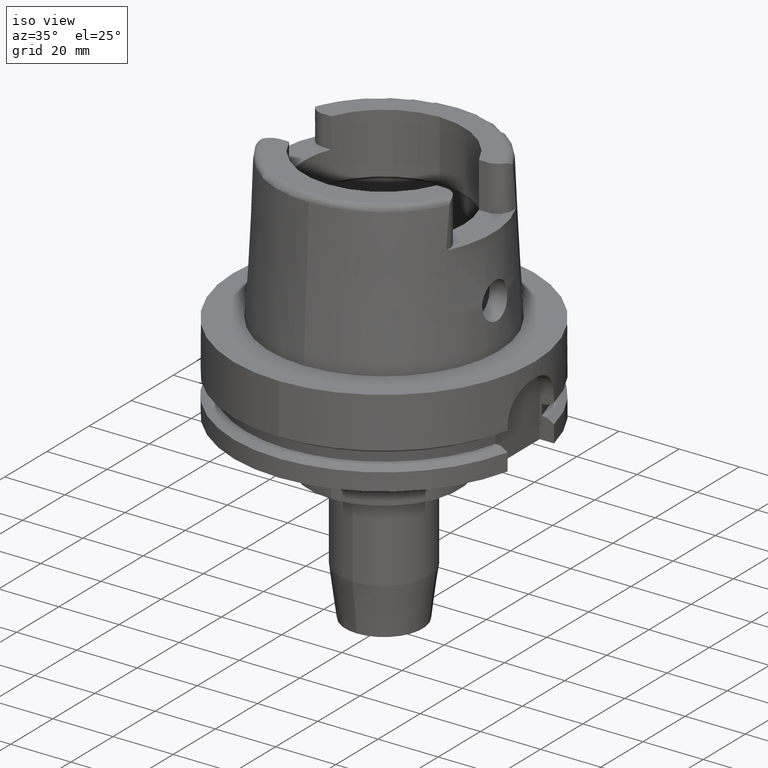
[diagram: clean part render]
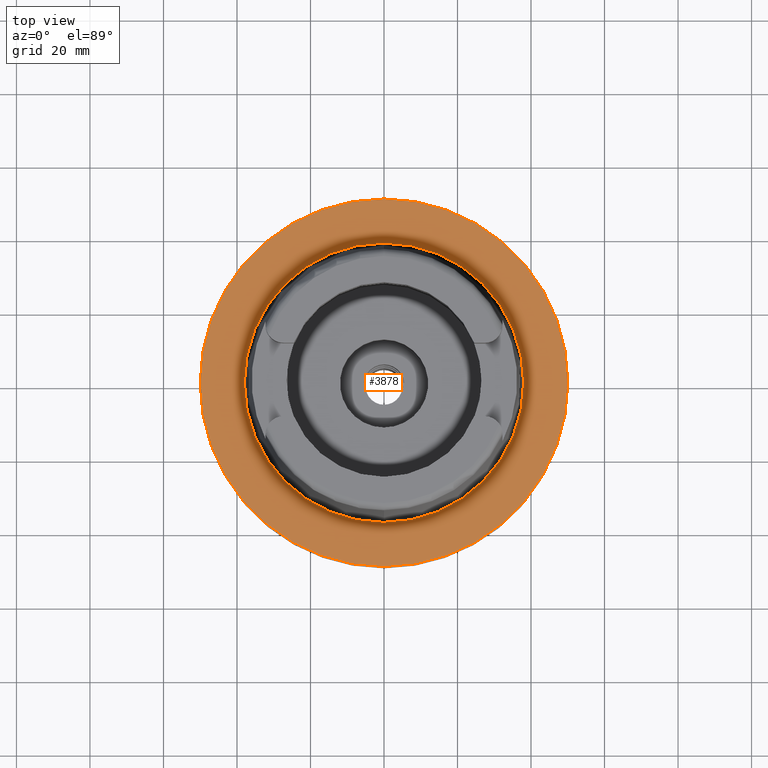
[diagram: tour spotlight — one face highlighted and labeled with its STEP entity id]
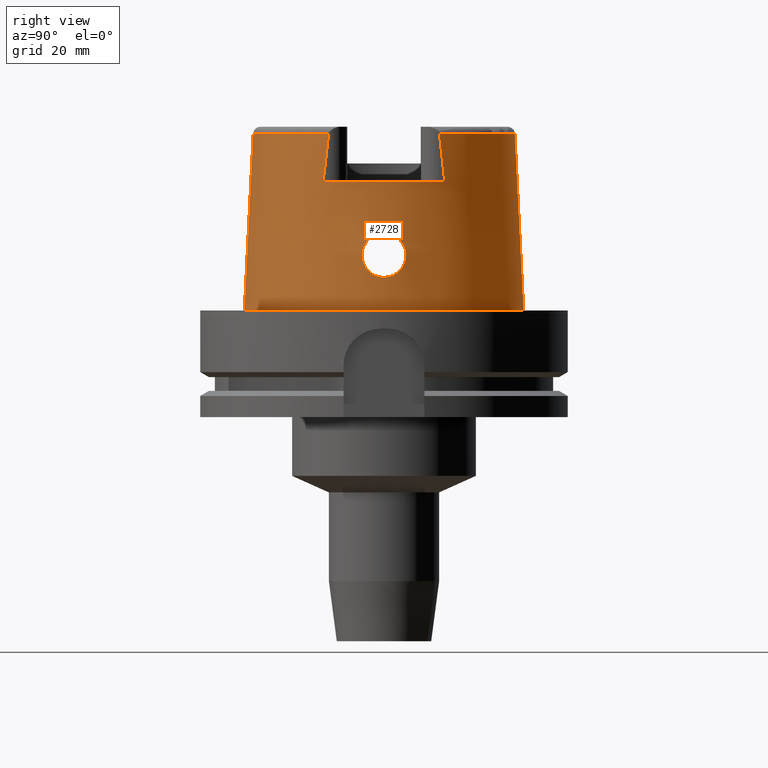
[diagram: tour spotlight — one face highlighted and labeled with its STEP entity id]
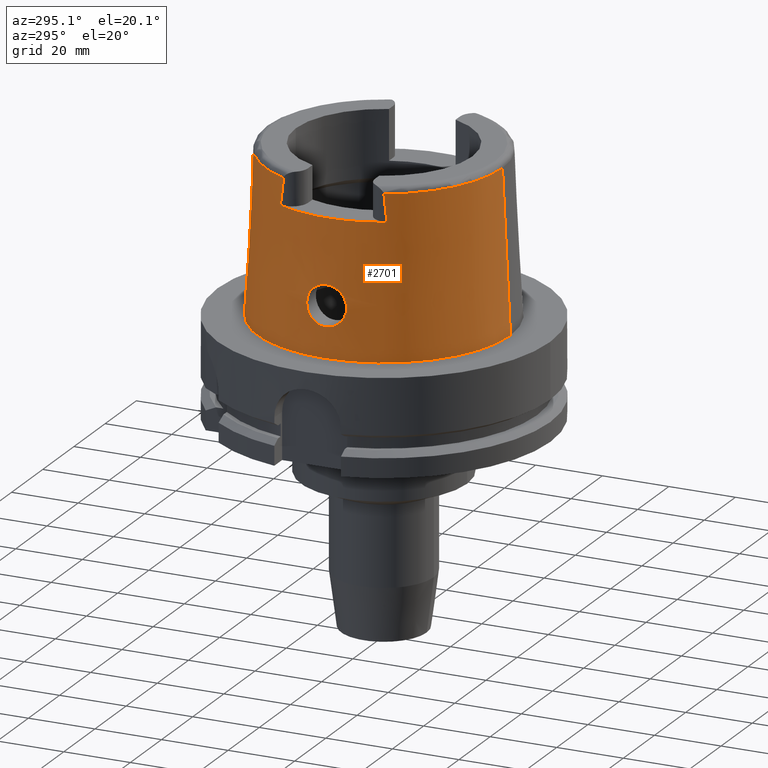
[diagram: tour spotlight — one face highlighted and labeled with its STEP entity id]
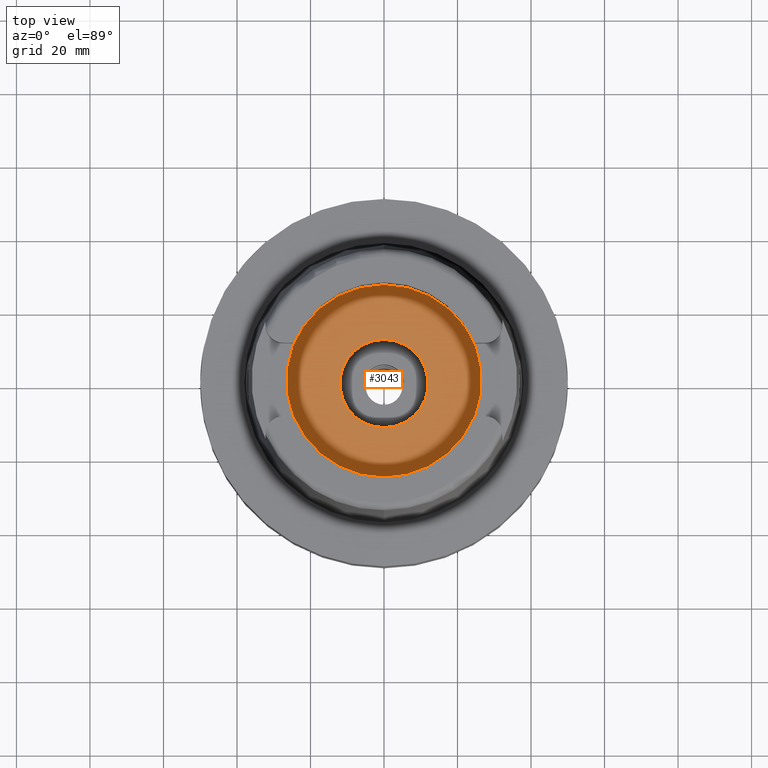
[diagram: tour spotlight — one face highlighted and labeled with its STEP entity id]
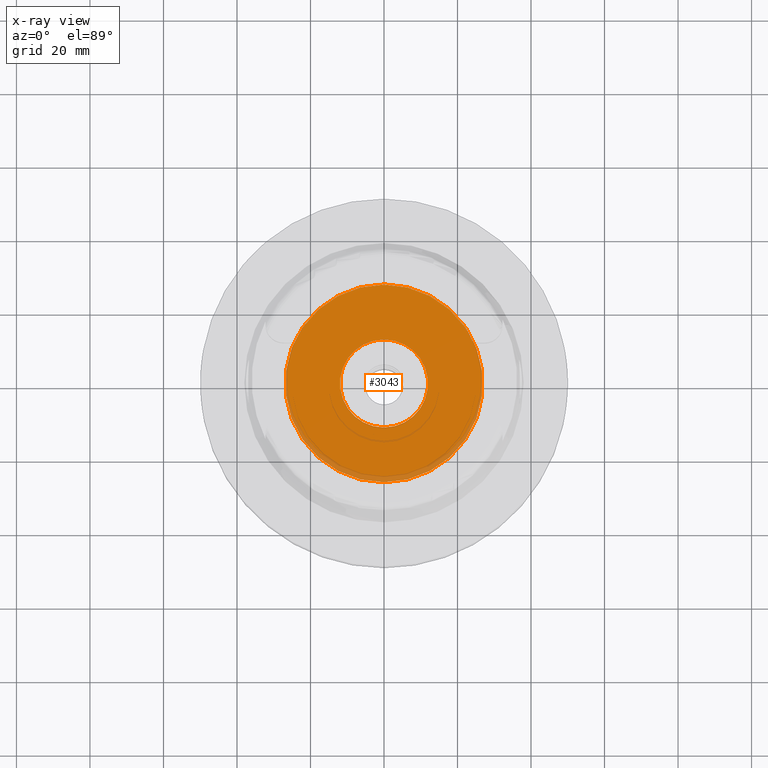
[diagram: x-ray of the same camera — body ghosted, this tour face saturated]
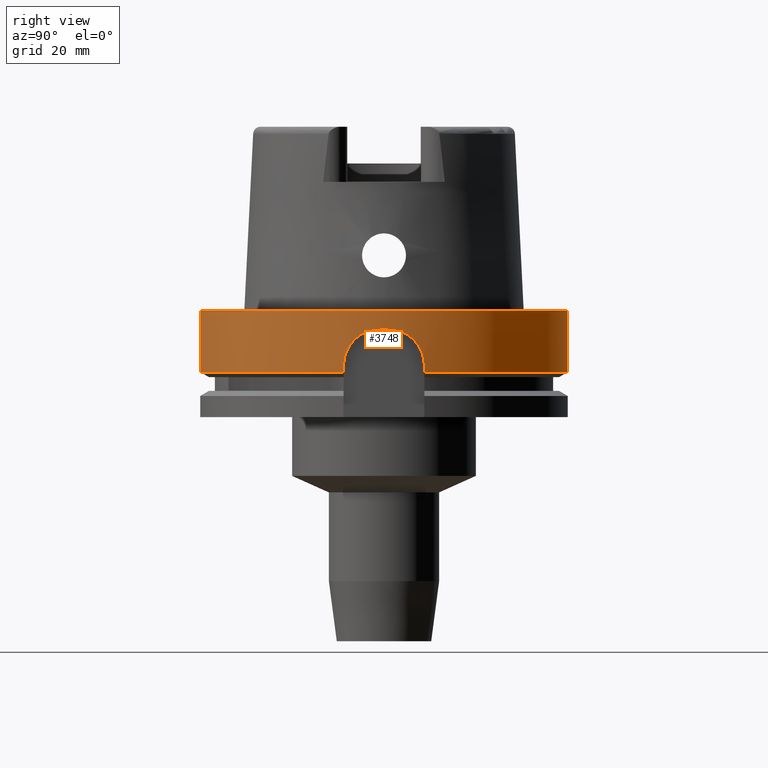
[diagram: tour spotlight — one face highlighted and labeled with its STEP entity id]
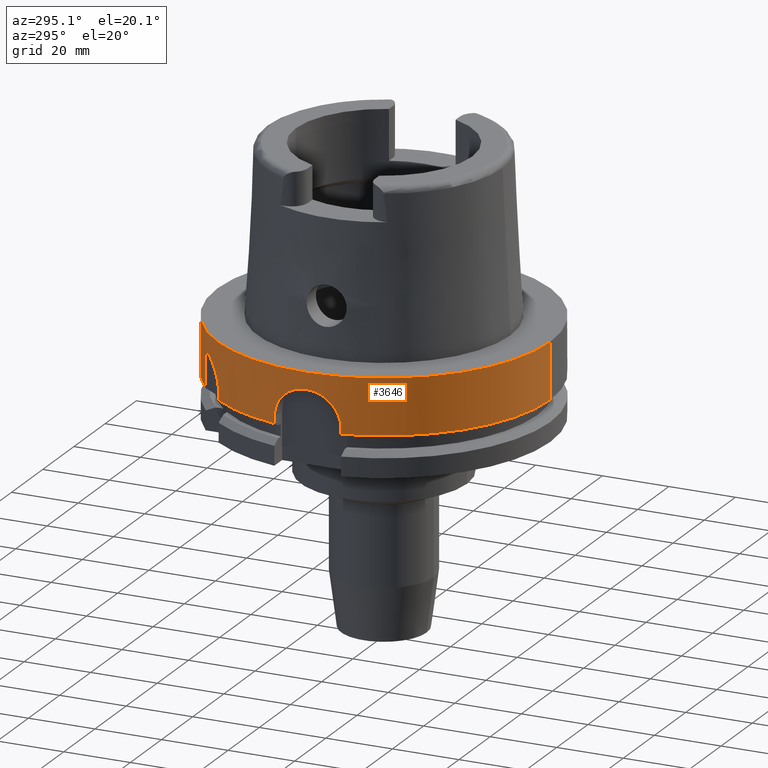
[diagram: tour spotlight — one face highlighted and labeled with its STEP entity id]
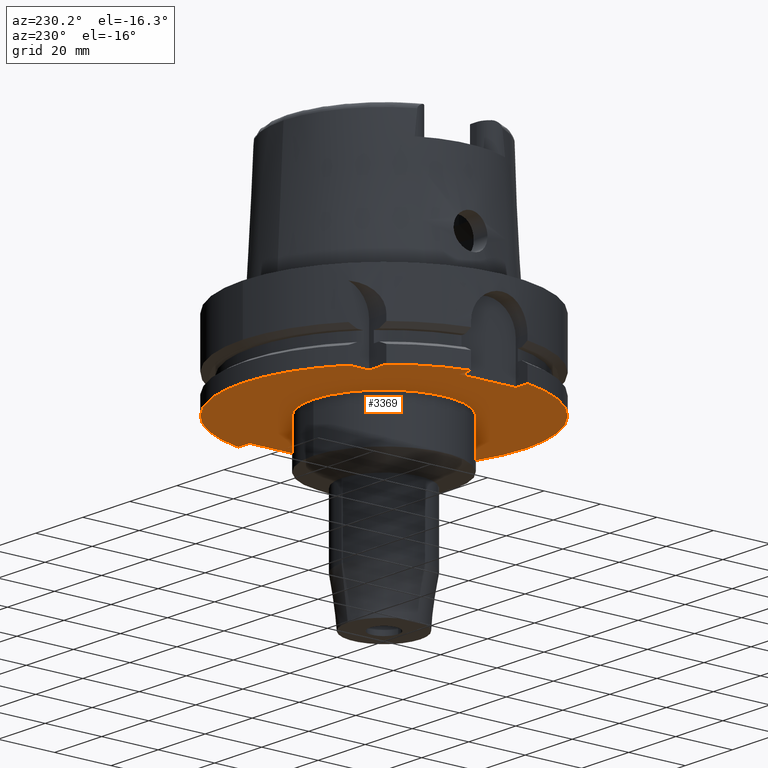
[diagram: tour spotlight — one face highlighted and labeled with its STEP entity id]
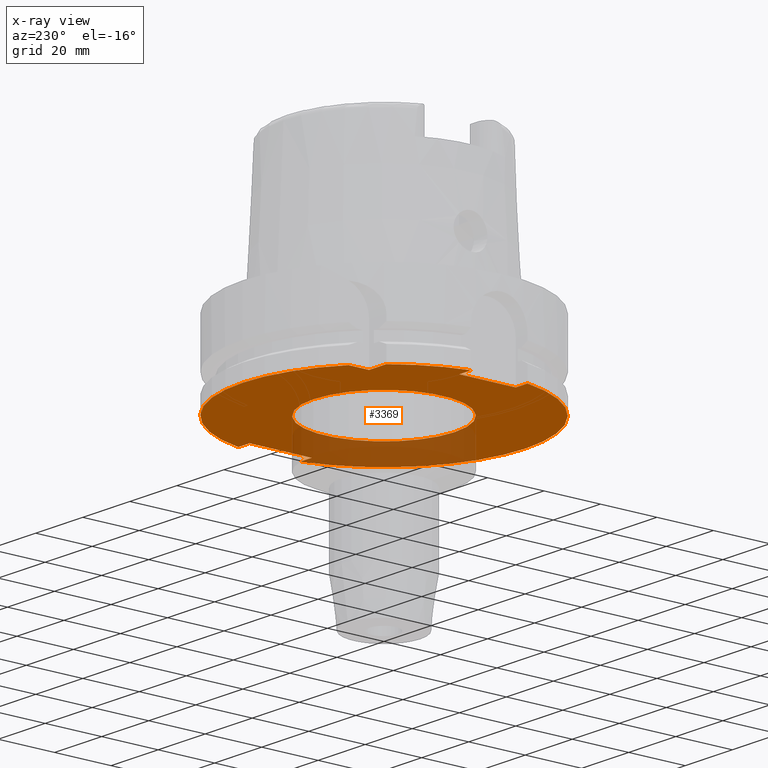
[diagram: x-ray of the same camera — body ghosted, this tour face saturated]
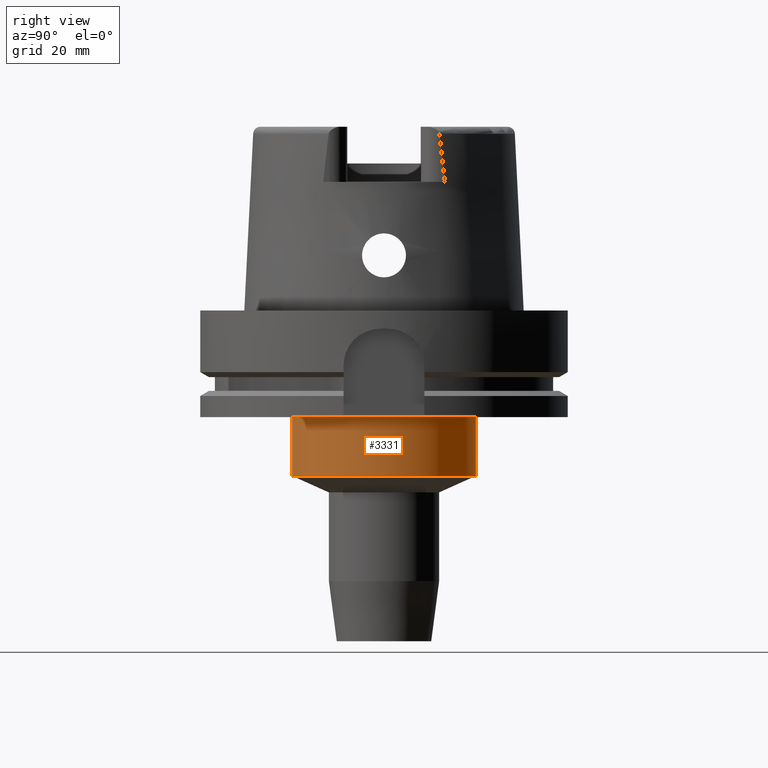
[diagram: tour spotlight — one face highlighted and labeled with its STEP entity id]
A machine part: a face-by-face anatomy tour. The part has 92 B-rep faces; the first image is the clean iso view, then the 8 largest visible faces are spotlighted one at a time (largest first), each with its STEP entity span.

Face 1 — top view, entity #3878. In plain terms, the highlighted planar face has unit normal (0, 0, 1).
Definition (entity closure, byte-faithful):
#1918=CARTESIAN_POINT('',(0.E0,0.E0,1.421085471520E-14));
#1919=DIRECTION('',(0.E0,0.E0,-1.E0));
#1920=DIRECTION('',(0.E0,-1.E0,0.E0));
#1921=AXIS2_PLACEMENT_3D('',#1918,#1919,#1920);
#1926=CARTESIAN_POINT('',(0.E0,0.E0,1.421085471520E-14));
#1927=DIRECTION('',(0.E0,0.E0,-1.E0));
#1928=DIRECTION('',(0.E0,1.E0,0.E0));
#1929=AXIS2_PLACEMENT_3D('',#1926,#1927,#1928);
#1934=CARTESIAN_POINT('',(0.E0,0.E0,1.023181539495E-12));
#1935=DIRECTION('',(0.E0,0.E0,1.E0));
#1936=DIRECTION('',(0.E0,-1.E0,0.E0));
#1937=AXIS2_PLACEMENT_3D('',#1934,#1935,#1936);
#1942=CARTESIAN_POINT('',(0.E0,0.E0,1.023181539495E-12));
#1943=DIRECTION('',(0.E0,0.E0,1.E0));
#1944=DIRECTION('',(0.E0,1.E0,0.E0));
#1945=AXIS2_PLACEMENT_3D('',#1942,#1943,#1944);
#2243=CARTESIAN_POINT('',(0.E0,-3.800001658252E1,6.892264536873E-13));
#2244=VERTEX_POINT('',#2243);
#2245=CARTESIAN_POINT('',(0.E0,3.800001658252E1,1.023181539495E-12));
#2246=VERTEX_POINT('',#2245);
#2476=CARTESIAN_POINT('',(0.E0,5.E1,1.421085471520E-14));
#2477=VERTEX_POINT('',#2476);
#2478=CARTESIAN_POINT('',(0.E0,-5.E1,1.421085471520E-14));
#2479=VERTEX_POINT('',#2478);
#3865=CARTESIAN_POINT('',(0.E0,0.E0,1.421085471520E-14));
#3866=DIRECTION('',(0.E0,0.E0,1.E0));
#3867=DIRECTION('',(0.E0,1.E0,0.E0));
#3868=AXIS2_PLACEMENT_3D('',#3865,#3866,#3867);
#3869=PLANE('',#3868);
#3870=ORIENTED_EDGE('',*,*,#3630,.T.);
#3871=ORIENTED_EDGE('',*,*,#3739,.T.);
#3872=EDGE_LOOP('',(#3870,#3871));
#3873=FACE_OUTER_BOUND('',#3872,.F.);
#3874=ORIENTED_EDGE('',*,*,#2714,.T.);
#3875=ORIENTED_EDGE('',*,*,#2685,.T.);
#3876=EDGE_LOOP('',(#3874,#3875));
#3877=FACE_BOUND('',#3876,.F.);
#1922=CIRCLE('',#1921,5.E1);
#1930=CIRCLE('',#1929,5.E1);
#1938=CIRCLE('',#1937,3.800001658252E1);
#1946=CIRCLE('',#1945,3.800001658252E1);
#2685=EDGE_CURVE('',#2246,#2244,#1946,.T.);
#2714=EDGE_CURVE('',#2244,#2246,#1938,.T.);
#3630=EDGE_CURVE('',#2479,#2477,#1922,.T.);
#3739=EDGE_CURVE('',#2477,#2479,#1930,.T.);
#3878=ADVANCED_FACE('',(#3873,#3877),#3869,.T.);

Face 2 — right view, entity #2728. In plain terms, the highlighted conical surface has half-angle 2.862 deg.
Definition (entity closure, byte-faithful):
#252=CARTESIAN_POINT('',(3.225000552017E1,-1.506439824101E1,4.810004211016E1));
#257=CARTESIAN_POINT('',(0.E0,0.E0,4.809987853799E1));
#258=DIRECTION('',(0.E0,0.E0,-1.E0));
#259=DIRECTION('',(9.060280460805E-1,-4.232176505246E-1,0.E0));
#260=AXIS2_PLACEMENT_3D('',#257,#258,#259);
#283=DIRECTION('',(5.154182075151E-5,-4.993927430816E-2,-9.987522546783E-1));
#284=VECTOR('',#283,4.815996991514E1);
#285=CARTESIAN_POINT('',(-2.482252536761E-3,-3.559494263425E1,
4.809987853799E1));
#286=LINE('',#285,#284);
#340=CARTESIAN_POINT('',(3.224999527489E1,1.655287543599E1,3.5E1));
#341=CARTESIAN_POINT('',(3.224999527489E1,1.639226210430E1,3.646677430492E1));
#342=CARTESIAN_POINT('',(3.224999958003E1,1.606837253952E1,3.939292749152E1));
#343=CARTESIAN_POINT('',(3.225000855756E1,1.557203234813E1,4.375938225518E1));
#344=CARTESIAN_POINT('',(3.224998031234E1,1.523513260123E1,4.665592298773E1));
#345=CARTESIAN_POINT('',(3.224998031234E1,1.506460281155E1,4.809931496843E1));
#350=DIRECTION('',(-5.154182075159E-5,4.993927430816E-2,-9.987522546783E-1));
#351=VECTOR('',#350,4.815996991514E1);
#352=CARTESIAN_POINT('',(2.482252536765E-3,3.559494263425E1,4.809987853799E1));
#353=LINE('',#352,#351);
#357=CARTESIAN_POINT('',(3.225000552017E1,-1.506439824101E1,4.810004211016E1));
#358=CARTESIAN_POINT('',(3.225000552017E1,-1.523503291308E1,4.665577790905E1));
#359=CARTESIAN_POINT('',(3.225000026293E1,-1.557219471894E1,4.376011586800E1));
#360=CARTESIAN_POINT('',(3.224999079948E1,-1.606856473816E1,3.939344258231E1));
#361=CARTESIAN_POINT('',(3.225002129259E1,-1.639212166417E1,3.646699412941E1));
#362=CARTESIAN_POINT('',(3.225002129259E1,-1.655276054267E1,3.5E1));
#367=CARTESIAN_POINT('',(3.694998175923E1,-1.503990973345E-13,2.1E1));
#368=CARTESIAN_POINT('',(3.694998175923E1,-4.801191505250E-1,2.1E1));
#369=CARTESIAN_POINT('',(3.693669518448E1,-1.443037160226E0,2.088407539947E1));
#370=CARTESIAN_POINT('',(3.688222525597E1,-2.812213765927E0,2.036759709156E1));
#371=CARTESIAN_POINT('',(3.680970426127E1,-4.022298401525E0,1.953026348318E1));
#372=CARTESIAN_POINT('',(3.674469850368E1,-4.978277620714E0,1.845129412502E1));
#373=CARTESIAN_POINT('',(3.670931274055E1,-5.659670919160E0,1.716166350534E1));
#374=CARTESIAN_POINT('',(3.672366607191E1,-6.010638566465E0,1.575446514446E1));
#375=CARTESIAN_POINT('',(3.679601650851E1,-6.017375129422E0,1.430491048279E1));
#376=CARTESIAN_POINT('',(3.692150360591E1,-5.682492346161E0,1.289864284966E1));
#377=CARTESIAN_POINT('',(3.708636419479E1,-5.010486523940E0,1.159416598817E1));
#378=CARTESIAN_POINT('',(3.726074696155E1,-4.054717448159E0,1.049595437204E1));
#379=CARTESIAN_POINT('',(3.742014200635E1,-2.820275689723E0,9.633675769486E0));
#380=CARTESIAN_POINT('',(3.752611369446E1,-1.431915040470E0,9.112741120027E0));
#381=CARTESIAN_POINT('',(3.755000165825E1,-4.738283291400E-1,9.E0));
#382=CARTESIAN_POINT('',(3.755000165825E1,0.E0,9.E0));
#387=CARTESIAN_POINT('',(3.755000165825E1,0.E0,9.E0));
#388=CARTESIAN_POINT('',(3.755000165825E1,4.746659365303E-1,9.E0));
#389=CARTESIAN_POINT('',(3.752593524301E1,1.428740779503E0,9.113659002864E0));
#390=CARTESIAN_POINT('',(3.742281735866E1,2.789157292599E0,9.620480192810E0));
#391=CARTESIAN_POINT('',(3.726793474523E1,4.006172063328E0,1.045569985053E1));
#392=CARTESIAN_POINT('',(3.709631867225E1,4.962911196506E0,1.152588914126E1));
#393=CARTESIAN_POINT('',(3.692867801413E1,5.658909158908E0,1.283096712388E1));
#394=CARTESIAN_POINT('',(3.679910806828E1,6.013409711768E0,1.425697628878E1));
#395=CARTESIAN_POINT('',(3.672455380602E1,6.015195535620E0,1.572203941849E1));
#396=CARTESIAN_POINT('',(3.670908571363E1,5.670955282614E0,1.713089879721E1));
#397=CARTESIAN_POINT('',(3.674336051068E1,4.998755423268E0,1.842165224560E1));
#398=CARTESIAN_POINT('',(3.680815078718E1,4.045667257102E0,1.951026133027E1));
#399=CARTESIAN_POINT('',(3.688128765514E1,2.831702102780E0,2.035837163422E1));
#400=CARTESIAN_POINT('',(3.693653264590E1,1.452394215414E0,2.088271523195E1));
#401=CARTESIAN_POINT('',(3.694998175923E1,4.831412896952E-1,2.1E1));
#402=CARTESIAN_POINT('',(3.694998175923E1,-1.503990973345E-13,2.1E1));
#437=CARTESIAN_POINT('',(0.E0,0.E0,3.5E1));
#438=DIRECTION('',(0.E0,0.E0,-1.E0));
#439=DIRECTION('',(8.896561898443E-1,4.566309931135E-1,0.E0));
#440=AXIS2_PLACEMENT_3D('',#437,#438,#439);
#1934=CARTESIAN_POINT('',(0.E0,0.E0,1.023181539495E-12));
#1935=DIRECTION('',(0.E0,0.E0,1.E0));
#1936=DIRECTION('',(0.E0,-1.E0,0.E0));
#1937=AXIS2_PLACEMENT_3D('',#1934,#1935,#1936);
#2147=CARTESIAN_POINT('',(0.E0,0.E0,4.809987853799E1));
#2148=DIRECTION('',(0.E0,0.E0,-1.E0));
#2149=DIRECTION('',(0.E0,1.E0,0.E0));
#2150=AXIS2_PLACEMENT_3D('',#2147,#2148,#2149);
#2233=CARTESIAN_POINT('',(0.E0,3.559494289391E1,4.809987853799E1));
#2234=VERTEX_POINT('',#2233);
#2235=CARTESIAN_POINT('',(3.224994093704E1,1.506456999646E1,4.809987853799E1));
#2236=VERTEX_POINT('',#2235);
#2240=VERTEX_POINT('',#252);
#2241=CARTESIAN_POINT('',(1.065814103640E-14,-3.559494289391E1,
4.809987853799E1));
#2242=VERTEX_POINT('',#2241);
#2243=CARTESIAN_POINT('',(0.E0,-3.800001658252E1,6.892264536873E-13));
#2244=VERTEX_POINT('',#2243);
#2245=CARTESIAN_POINT('',(0.E0,3.800001658252E1,1.023181539495E-12));
#2246=VERTEX_POINT('',#2245);
#2249=CARTESIAN_POINT('',(3.225E1,1.655285457013E1,3.5E1));
#2250=CARTESIAN_POINT('',(3.225E1,-1.655285457013E1,3.5E1));
#2251=VERTEX_POINT('',#2249);
#2252=VERTEX_POINT('',#2250);
#2253=VERTEX_POINT('',#367);
#2254=VERTEX_POINT('',#382);
#2702=CARTESIAN_POINT('',(0.E0,0.E0,2.404993926900E1));
#2703=DIRECTION('',(0.E0,0.E0,-1.E0));
#2704=DIRECTION('',(0.E0,-1.E0,0.E0));
#2705=AXIS2_PLACEMENT_3D('',#2702,#2703,#2704);
#2706=CONICAL_SURFACE('',#2705,3.679747973821E1,2.8625E0);
#2708=ORIENTED_EDGE('',*,*,#2707,.F.);
#2710=ORIENTED_EDGE('',*,*,#2709,.T.);
#2712=ORIENTED_EDGE('',*,*,#2711,.F.);
#2713=ORIENTED_EDGE('',*,*,#2687,.T.);
#2715=ORIENTED_EDGE('',*,*,#2714,.F.);
#2716=ORIENTED_EDGE('',*,*,#2683,.F.);
#2717=ORIENTED_EDGE('',*,*,#2655,.F.);
#2719=ORIENTED_EDGE('',*,*,#2718,.T.);
#2720=EDGE_LOOP('',(#2708,#2710,#2712,#2713,#2715,#2716,#2717,#2719));
#2721=FACE_OUTER_BOUND('',#2720,.F.);
#2723=ORIENTED_EDGE('',*,*,#2722,.T.);
#2725=ORIENTED_EDGE('',*,*,#2724,.T.);
#2726=EDGE_LOOP('',(#2723,#2725));
#2727=FACE_BOUND('',#2726,.F.);
#261=CIRCLE('',#260,3.559494289391E1);
#346=B_SPLINE_CURVE_WITH_KNOTS('',3,(#340,#341,#342,#343,#344,#345),
.UNSPECIFIED.,.F.,.F.,(4,1,1,4),(0.E0,3.333333333333E-1,6.666666666667E-1,1.E0),
.UNSPECIFIED.);
#363=B_SPLINE_CURVE_WITH_KNOTS('',3,(#357,#358,#359,#360,#361,#362),
.UNSPECIFIED.,.F.,.F.,(4,1,1,4),(0.E0,3.333333333333E-1,6.666666666667E-1,1.E0),
.UNSPECIFIED.);
#383=B_SPLINE_CURVE_WITH_KNOTS('',3,(#367,#368,#369,#370,#371,#372,#373,#374,
#375,#376,#377,#378,#379,#380,#381,#382),.UNSPECIFIED.,.F.,.F.,(4,1,1,1,1,1,1,1,
1,1,1,1,1,4),(0.E0,7.692307692308E-2,1.538461538462E-1,2.307692307692E-1,
3.076923076923E-1,3.846153846154E-1,4.615384615385E-1,5.384615384615E-1,
6.153846153846E-1,6.923076923077E-1,7.692307692308E-1,8.461538461538E-1,
9.230769230769E-1,1.E0),.UNSPECIFIED.);
#403=B_SPLINE_CURVE_WITH_KNOTS('',3,(#387,#388,#389,#390,#391,#392,#393,#394,
#395,#396,#397,#398,#399,#400,#401,#402),.UNSPECIFIED.,.F.,.F.,(4,1,1,1,1,1,1,1,
1,1,1,1,1,4),(0.E0,7.692307692308E-2,1.538461538462E-1,2.307692307692E-1,
3.076923076923E-1,3.846153846154E-1,4.615384615385E-1,5.384615384615E-1,
6.153846153846E-1,6.923076923077E-1,7.692307692308E-1,8.461538461538E-1,
9.230769230769E-1,1.E0),.UNSPECIFIED.);
#441=CIRCLE('',#440,3.624995854370E1);
#1938=CIRCLE('',#1937,3.800001658252E1);
#2151=CIRCLE('',#2150,3.559494289391E1);
#2655=EDGE_CURVE('',#2240,#2242,#261,.T.);
#2683=EDGE_CURVE('',#2242,#2244,#286,.T.);
#2687=EDGE_CURVE('',#2234,#2246,#353,.T.);
#2707=EDGE_CURVE('',#2251,#2252,#441,.T.);
#2709=EDGE_CURVE('',#2251,#2236,#346,.T.);
#2711=EDGE_CURVE('',#2234,#2236,#2151,.T.);
#2714=EDGE_CURVE('',#2244,#2246,#1938,.T.);
#2718=EDGE_CURVE('',#2240,#2252,#363,.T.);
#2722=EDGE_CURVE('',#2253,#2254,#383,.T.);
#2724=EDGE_CURVE('',#2254,#2253,#403,.T.);
#2728=ADVANCED_FACE('',(#2721,#2727),#2706,.T.);

Face 3 — auxiliary view, entity #2701. In plain terms, the highlighted conical surface has half-angle 2.862 deg.
Definition (entity closure, byte-faithful):
#130=CARTESIAN_POINT('',(0.E0,0.E0,4.E1));
#131=DIRECTION('',(0.E0,0.E0,-1.E0));
#132=DIRECTION('',(-8.958345712660E-1,-4.443876921391E-1,0.E0));
#133=AXIS2_PLACEMENT_3D('',#130,#131,#132);
#237=CARTESIAN_POINT('',(-3.224999491821E1,-1.506448487682E1,4.809973203731E1));
#265=CARTESIAN_POINT('',(0.E0,0.E0,4.809987853799E1));
#266=DIRECTION('',(0.E0,0.E0,-1.E0));
#267=DIRECTION('',(0.E0,-1.E0,0.E0));
#268=AXIS2_PLACEMENT_3D('',#265,#266,#267);
#273=CARTESIAN_POINT('',(-3.224999876012E1,-1.599794043148E1,4.E1));
#274=CARTESIAN_POINT('',(-3.224999876012E1,-1.589618560063E1,4.090434232027E1));
#275=CARTESIAN_POINT('',(-3.224999990104E1,-1.569149929001E1,4.271014761156E1));
#276=CARTESIAN_POINT('',(-3.225000220619E1,-1.538028256141E1,4.541006256223E1));
#277=CARTESIAN_POINT('',(-3.224999491821E1,-1.517027177916E1,4.720434000043E1));
#278=CARTESIAN_POINT('',(-3.224999491821E1,-1.506448487682E1,4.809973203731E1));
#283=DIRECTION('',(5.154182075151E-5,-4.993927430816E-2,-9.987522546783E-1));
#284=VECTOR('',#283,4.815996991514E1);
#285=CARTESIAN_POINT('',(-2.482252536761E-3,-3.559494263425E1,
4.809987853799E1));
#286=LINE('',#285,#284);
#290=CARTESIAN_POINT('',(-3.225000136841E1,1.506443226560E1,4.809991936163E1));
#291=CARTESIAN_POINT('',(-3.225000136841E1,1.517024629756E1,4.720430015956E1));
#292=CARTESIAN_POINT('',(-3.225000007421E1,1.538032523255E1,4.541024587332E1));
#293=CARTESIAN_POINT('',(-3.224999768767E1,1.569154927011E1,4.271027465936E1));
#294=CARTESIAN_POINT('',(-3.225000534596E1,1.589614940559E1,4.090439636549E1));
#295=CARTESIAN_POINT('',(-3.225000534596E1,1.599791057085E1,4.E1));
#300=CARTESIAN_POINT('',(-3.755000165825E1,1.571614468377E-13,9.E0));
#301=CARTESIAN_POINT('',(-3.755000165825E1,-4.746705843115E-1,9.E0));
#302=CARTESIAN_POINT('',(-3.752593484732E1,-1.428751077722E0,9.113660768391E0));
#303=CARTESIAN_POINT('',(-3.742281602409E1,-2.789168703710E0,9.620487241016E0));
#304=CARTESIAN_POINT('',(-3.726793544939E1,-4.006166469709E0,1.045569603939E1));
#305=CARTESIAN_POINT('',(-3.709631906876E1,-4.962909667856E0,1.152588634947E1));
#306=CARTESIAN_POINT('',(-3.692867825695E1,-5.658908489487E0,1.283096437532E1));
#307=CARTESIAN_POINT('',(-3.679910752654E1,-6.013411068954E0,1.425698264724E1));
#308=CARTESIAN_POINT('',(-3.672455367578E1,-6.015194364960E0,1.572204574714E1));
#309=CARTESIAN_POINT('',(-3.670908576067E1,-5.670954713466E0,1.713089968065E1));
#310=CARTESIAN_POINT('',(-3.674336048072E1,-4.998755925283E0,1.842165021819E1));
#311=CARTESIAN_POINT('',(-3.680815033466E1,-4.045674590613E0,1.951025573443E1));
#312=CARTESIAN_POINT('',(-3.688128818393E1,-2.831692909162E0,2.035837756362E1));
#313=CARTESIAN_POINT('',(-3.693653277226E1,-1.452387684598E0,2.088271612644E1));
#314=CARTESIAN_POINT('',(-3.694998175923E1,-4.831382252281E-1,2.1E1));
#315=CARTESIAN_POINT('',(-3.694998175923E1,0.E0,2.1E1));
#320=CARTESIAN_POINT('',(-3.694998175923E1,0.E0,2.1E1));
#321=CARTESIAN_POINT('',(-3.694998175923E1,4.801232090910E-1,2.1E1));
#322=CARTESIAN_POINT('',(-3.693669500324E1,1.443045878028E0,2.088407402034E1));
#323=CARTESIAN_POINT('',(-3.688222464620E1,2.812224362034E0,2.036759033196E1));
#324=CARTESIAN_POINT('',(-3.680970476685E1,4.022290066889E0,1.953026948162E1));
#325=CARTESIAN_POINT('',(-3.674469882622E1,4.978272949091E0,1.845130119078E1));
#326=CARTESIAN_POINT('',(-3.670931288366E1,5.659666255118E0,1.716167499293E1));
#327=CARTESIAN_POINT('',(-3.672366568587E1,6.010638144956E0,1.575447426686E1));
#328=CARTESIAN_POINT('',(-3.679601641605E1,6.017375320849E0,1.430491156046E1));
#329=CARTESIAN_POINT('',(-3.692150307020E1,5.682494152192E0,1.289864804832E1));
#330=CARTESIAN_POINT('',(-3.708636365891E1,5.010488641359E0,1.159416984780E1));
#331=CARTESIAN_POINT('',(-3.726074583466E1,4.054725496044E0,1.049596070945E1));
#332=CARTESIAN_POINT('',(-3.742014291371E1,2.820268462267E0,9.633670873075E0));
#333=CARTESIAN_POINT('',(-3.752611389780E1,1.431909116865E0,9.112740269695E0));
#334=CARTESIAN_POINT('',(-3.755000165825E1,4.738254836085E-1,9.E0));
#335=CARTESIAN_POINT('',(-3.755000165825E1,1.571614468377E-13,9.E0));
#350=DIRECTION('',(-5.154182075159E-5,4.993927430816E-2,-9.987522546783E-1));
#351=VECTOR('',#350,4.815996991514E1);
#352=CARTESIAN_POINT('',(2.482252536765E-3,3.559494263425E1,4.809987853799E1));
#353=LINE('',#352,#351);
#1942=CARTESIAN_POINT('',(0.E0,0.E0,1.023181539495E-12));
#1943=DIRECTION('',(0.E0,0.E0,1.E0));
#1944=DIRECTION('',(0.E0,1.E0,0.E0));
#1945=AXIS2_PLACEMENT_3D('',#1942,#1943,#1944);
#2134=CARTESIAN_POINT('',(-3.225000136841E1,1.506443226560E1,4.809991936163E1));
#2139=CARTESIAN_POINT('',(0.E0,0.E0,4.809987853799E1));
#2140=DIRECTION('',(0.E0,0.E0,-1.E0));
#2141=DIRECTION('',(-9.060276961631E-1,4.232183996300E-1,0.E0));
#2142=AXIS2_PLACEMENT_3D('',#2139,#2140,#2141);
#2227=CARTESIAN_POINT('',(-3.224999876012E1,-1.599794043148E1,4.E1));
#2228=VERTEX_POINT('',#2227);
#2229=CARTESIAN_POINT('',(-3.224999999999E1,1.599793480981E1,4.E1));
#2230=VERTEX_POINT('',#2229);
#2232=VERTEX_POINT('',#2134);
#2233=CARTESIAN_POINT('',(0.E0,3.559494289391E1,4.809987853799E1));
#2234=VERTEX_POINT('',#2233);
#2238=VERTEX_POINT('',#237);
#2241=CARTESIAN_POINT('',(1.065814103640E-14,-3.559494289391E1,
4.809987853799E1));
#2242=VERTEX_POINT('',#2241);
#2243=CARTESIAN_POINT('',(0.E0,-3.800001658252E1,6.892264536873E-13));
#2244=VERTEX_POINT('',#2243);
#2245=CARTESIAN_POINT('',(0.E0,3.800001658252E1,1.023181539495E-12));
#2246=VERTEX_POINT('',#2245);
#2247=VERTEX_POINT('',#300);
#2248=VERTEX_POINT('',#315);
#2675=CARTESIAN_POINT('',(0.E0,0.E0,2.404993926900E1));
#2676=DIRECTION('',(0.E0,0.E0,-1.E0));
#2677=DIRECTION('',(0.E0,-1.E0,0.E0));
#2678=AXIS2_PLACEMENT_3D('',#2675,#2676,#2677);
#2679=CONICAL_SURFACE('',#2678,3.679747973821E1,2.8625E0);
#2680=ORIENTED_EDGE('',*,*,#2584,.F.);
#2681=ORIENTED_EDGE('',*,*,#2667,.T.);
#2682=ORIENTED_EDGE('',*,*,#2657,.F.);
#2684=ORIENTED_EDGE('',*,*,#2683,.T.);
#2686=ORIENTED_EDGE('',*,*,#2685,.F.);
#2688=ORIENTED_EDGE('',*,*,#2687,.F.);
#2690=ORIENTED_EDGE('',*,*,#2689,.F.);
#2692=ORIENTED_EDGE('',*,*,#2691,.T.);
#2693=EDGE_LOOP('',(#2680,#2681,#2682,#2684,#2686,#2688,#2690,#2692));
#2694=FACE_OUTER_BOUND('',#2693,.F.);
#2696=ORIENTED_EDGE('',*,*,#2695,.T.);
#2698=ORIENTED_EDGE('',*,*,#2697,.T.);
#2699=EDGE_LOOP('',(#2696,#2698));
#2700=FACE_BOUND('',#2699,.F.);
#134=CIRCLE('',#133,3.599995025244E1);
#269=CIRCLE('',#268,3.559494289391E1);
#279=B_SPLINE_CURVE_WITH_KNOTS('',3,(#273,#274,#275,#276,#277,#278),
.UNSPECIFIED.,.F.,.F.,(4,1,1,4),(0.E0,3.333333333333E-1,6.666666666667E-1,1.E0),
.UNSPECIFIED.);
#296=B_SPLINE_CURVE_WITH_KNOTS('',3,(#290,#291,#292,#293,#294,#295),
.UNSPECIFIED.,.F.,.F.,(4,1,1,4),(0.E0,3.333333333333E-1,6.666666666667E-1,1.E0),
.UNSPECIFIED.);
#316=B_SPLINE_CURVE_WITH_KNOTS('',3,(#300,#301,#302,#303,#304,#305,#306,#307,
#308,#309,#310,#311,#312,#313,#314,#315),.UNSPECIFIED.,.F.,.F.,(4,1,1,1,1,1,1,1,
1,1,1,1,1,4),(0.E0,7.692307692308E-2,1.538461538462E-1,2.307692307692E-1,
3.076923076923E-1,3.846153846154E-1,4.615384615385E-1,5.384615384615E-1,
6.153846153846E-1,6.923076923077E-1,7.692307692308E-1,8.461538461538E-1,
9.230769230769E-1,1.E0),.UNSPECIFIED.);
#336=B_SPLINE_CURVE_WITH_KNOTS('',3,(#320,#321,#322,#323,#324,#325,#326,#327,
#328,#329,#330,#331,#332,#333,#334,#335),.UNSPECIFIED.,.F.,.F.,(4,1,1,1,1,1,1,1,
1,1,1,1,1,4),(0.E0,7.692307692308E-2,1.538461538462E-1,2.307692307692E-1,
3.076923076923E-1,3.846153846154E-1,4.615384615385E-1,5.384615384615E-1,
6.153846153846E-1,6.923076923077E-1,7.692307692308E-1,8.461538461538E-1,
9.230769230769E-1,1.E0),.UNSPECIFIED.);
#1946=CIRCLE('',#1945,3.800001658252E1);
#2143=CIRCLE('',#2142,3.559494289391E1);
#2584=EDGE_CURVE('',#2228,#2230,#134,.T.);
#2657=EDGE_CURVE('',#2242,#2238,#269,.T.);
#2667=EDGE_CURVE('',#2228,#2238,#279,.T.);
#2683=EDGE_CURVE('',#2242,#2244,#286,.T.);
#2685=EDGE_CURVE('',#2246,#2244,#1946,.T.);
#2687=EDGE_CURVE('',#2234,#2246,#353,.T.);
#2689=EDGE_CURVE('',#2232,#2234,#2143,.T.);
#2691=EDGE_CURVE('',#2232,#2230,#296,.T.);
#2695=EDGE_CURVE('',#2247,#2248,#316,.T.);
#2697=EDGE_CURVE('',#2248,#2247,#336,.T.);
#2701=ADVANCED_FACE('',(#2694,#2700),#2679,.T.);

Face 4 — top view, entity #3043. An x-ray twin of the same camera follows (body ghosted, this face saturated) — the face is partly hidden behind the body. In plain terms, the highlighted planar face has unit normal (0, 0, 1).
Definition (entity closure, byte-faithful):
#833=CARTESIAN_POINT('',(0.E0,0.E0,-1.245E1));
#834=DIRECTION('',(0.E0,0.E0,-1.E0));
#835=DIRECTION('',(0.E0,-1.E0,0.E0));
#836=AXIS2_PLACEMENT_3D('',#833,#834,#835);
#841=CARTESIAN_POINT('',(0.E0,0.E0,-1.245E1));
#842=DIRECTION('',(0.E0,0.E0,-1.E0));
#843=DIRECTION('',(0.E0,1.E0,0.E0));
#844=AXIS2_PLACEMENT_3D('',#841,#842,#843);
#849=CARTESIAN_POINT('',(0.E0,0.E0,-1.245E1));
#850=DIRECTION('',(0.E0,0.E0,1.E0));
#851=DIRECTION('',(0.E0,-1.E0,0.E0));
#852=AXIS2_PLACEMENT_3D('',#849,#850,#851);
#857=CARTESIAN_POINT('',(0.E0,0.E0,-1.245E1));
#858=DIRECTION('',(0.E0,0.E0,1.E0));
#859=DIRECTION('',(0.E0,1.E0,0.E0));
#860=AXIS2_PLACEMENT_3D('',#857,#858,#859);
#2293=CARTESIAN_POINT('',(0.E0,2.69E1,-1.245E1));
#2294=VERTEX_POINT('',#2293);
#2295=CARTESIAN_POINT('',(0.E0,-2.69E1,-1.245E1));
#2296=VERTEX_POINT('',#2295);
#2297=CARTESIAN_POINT('',(0.E0,-1.2E1,-1.245E1));
#2298=CARTESIAN_POINT('',(0.E0,1.2E1,-1.245E1));
#2299=VERTEX_POINT('',#2297);
#2300=VERTEX_POINT('',#2298);
#3028=CARTESIAN_POINT('',(0.E0,0.E0,-1.245E1));
#3029=DIRECTION('',(0.E0,0.E0,1.E0));
#3030=DIRECTION('',(0.E0,1.E0,0.E0));
#3031=AXIS2_PLACEMENT_3D('',#3028,#3029,#3030);
#3032=PLANE('',#3031);
#3033=ORIENTED_EDGE('',*,*,#3007,.T.);
#3034=ORIENTED_EDGE('',*,*,#3023,.T.);
#3035=EDGE_LOOP('',(#3033,#3034));
#3036=FACE_OUTER_BOUND('',#3035,.F.);
#3038=ORIENTED_EDGE('',*,*,#3037,.T.);
#3040=ORIENTED_EDGE('',*,*,#3039,.T.);
#3041=EDGE_LOOP('',(#3038,#3040));
#3042=FACE_BOUND('',#3041,.F.);
#837=CIRCLE('',#836,2.69E1);
#845=CIRCLE('',#844,2.69E1);
#853=CIRCLE('',#852,1.2E1);
#861=CIRCLE('',#860,1.2E1);
#3007=EDGE_CURVE('',#2296,#2294,#837,.T.);
#3023=EDGE_CURVE('',#2294,#2296,#845,.T.);
#3037=EDGE_CURVE('',#2299,#2300,#853,.T.);
#3039=EDGE_CURVE('',#2300,#2299,#861,.T.);
#3043=ADVANCED_FACE('',(#3036,#3042),#3032,.T.);

Face 5 — right view, entity #3748. In plain terms, the highlighted cylindrical surface (partial cylindrical patch) has radius 50 mm, axis along (0, 0, 1).
Definition (entity closure, byte-faithful):
#1465=DIRECTION('',(0.E0,2.969006079282E-14,-1.E0));
#1466=VECTOR('',#1465,1.675240473581E1);
#1467=CARTESIAN_POINT('',(0.E0,-5.E1,1.421085471520E-14));
#1468=LINE('',#1467,#1466);
#1518=CARTESIAN_POINT('',(4.877499359303E1,1.1E1,-1.675240473581E1));
#1523=CARTESIAN_POINT('',(0.E0,0.E0,-1.675240473581E1));
#1524=DIRECTION('',(0.E0,0.E0,1.E0));
#1525=DIRECTION('',(9.754998718606E-1,2.2E-1,0.E0));
#1526=AXIS2_PLACEMENT_3D('',#1523,#1524,#1525);
#1667=CARTESIAN_POINT('',(4.998999899980E1,-1.E0,-5.E0));
#1668=CARTESIAN_POINT('',(4.997695809253E1,-1.651914941315E0,-5.E0));
#1669=CARTESIAN_POINT('',(4.992611708299E1,-2.934341111102E0,
-5.124728941695E0));
#1670=CARTESIAN_POINT('',(4.977789112498E1,-4.827247994406E0,
-5.690603842362E0));
#1671=CARTESIAN_POINT('',(4.957457902509E1,-6.578842654584E0,
-6.622784493058E0));
#1672=CARTESIAN_POINT('',(4.934527450601E1,-8.106103719804E0,
-7.873064108808E0));
#1673=CARTESIAN_POINT('',(4.912022300181E1,-9.360586492827E0,
-9.396081057010E0));
#1674=CARTESIAN_POINT('',(4.892944009841E1,-1.030074341842E1,
-1.115013804787E1));
#1675=CARTESIAN_POINT('',(4.880379105526E1,-1.087346692168E1,
-1.305264467328E1));
#1676=CARTESIAN_POINT('',(4.877499359303E1,-1.1E1,-1.434294322813E1));
#1677=CARTESIAN_POINT('',(4.877499359303E1,-1.1E1,-1.5E1));
#1682=DIRECTION('',(-5.027793947017E-13,6.690209687563E-14,-1.E0));
#1683=VECTOR('',#1682,1.752404735809E0);
#1684=CARTESIAN_POINT('',(4.877499359303E1,-1.1E1,-1.5E1));
#1685=LINE('',#1684,#1683);
#1689=DIRECTION('',(0.E0,-2.969006079282E-14,-1.E0));
#1690=VECTOR('',#1689,1.675240473581E1);
#1691=CARTESIAN_POINT('',(0.E0,5.E1,1.421085471520E-14));
#1692=LINE('',#1691,#1690);
#1696=DIRECTION('',(4.946700496259E-13,7.095676941355E-14,1.E0));
#1697=VECTOR('',#1696,1.752404735809E0);
#1698=CARTESIAN_POINT('',(4.877499359303E1,1.1E1,-1.675240473581E1));
#1699=LINE('',#1698,#1697);
#1703=CARTESIAN_POINT('',(4.877499359303E1,1.1E1,-1.5E1));
#1704=CARTESIAN_POINT('',(4.877499359303E1,1.1E1,-1.434984744409E1));
#1705=CARTESIAN_POINT('',(4.880320268475E1,1.087602698795E1,-1.307136026674E1));
#1706=CARTESIAN_POINT('',(4.892679796394E1,1.031301171472E1,-1.118204285681E1));
#1707=CARTESIAN_POINT('',(4.911563419183E1,9.384162747857E0,-9.432260097868E0));
#1708=CARTESIAN_POINT('',(4.933958016211E1,8.140217859746E0,-7.907420363883E0));
#1709=CARTESIAN_POINT('',(4.956937110059E1,6.617803105431E0,-6.648525502778E0));
#1710=CARTESIAN_POINT('',(4.977438907170E1,4.864173629736E0,-5.705070251166E0));
#1711=CARTESIAN_POINT('',(4.992494280617E1,2.958157340360E0,-5.128157079504E0));
#1712=CARTESIAN_POINT('',(4.997677770009E1,1.660932759335E0,-5.E0));
#1713=CARTESIAN_POINT('',(4.998999899980E1,1.E0,-5.E0));
#1718=CARTESIAN_POINT('',(0.E0,0.E0,-5.E0));
#1719=DIRECTION('',(0.E0,0.E0,1.E0));
#1720=DIRECTION('',(9.997999799960E-1,-2.E-2,0.E0));
#1721=AXIS2_PLACEMENT_3D('',#1718,#1719,#1720);
#1772=CARTESIAN_POINT('',(0.E0,0.E0,-1.675240473581E1));
#1773=DIRECTION('',(0.E0,0.E0,1.E0));
#1774=DIRECTION('',(0.E0,-1.E0,0.E0));
#1775=AXIS2_PLACEMENT_3D('',#1772,#1773,#1774);
#1926=CARTESIAN_POINT('',(0.E0,0.E0,1.421085471520E-14));
#1927=DIRECTION('',(0.E0,0.E0,-1.E0));
#1928=DIRECTION('',(0.E0,1.E0,0.E0));
#1929=AXIS2_PLACEMENT_3D('',#1926,#1927,#1928);
#2468=CARTESIAN_POINT('',(0.E0,-5.E1,-1.675240473581E1));
#2469=VERTEX_POINT('',#2468);
#2470=CARTESIAN_POINT('',(4.877499359303E1,-1.1E1,-1.675240473581E1));
#2471=VERTEX_POINT('',#2470);
#2472=VERTEX_POINT('',#1518);
#2473=CARTESIAN_POINT('',(0.E0,5.E1,-1.675240473581E1));
#2474=VERTEX_POINT('',#2473);
#2476=CARTESIAN_POINT('',(0.E0,5.E1,1.421085471520E-14));
#2477=VERTEX_POINT('',#2476);
#2478=CARTESIAN_POINT('',(0.E0,-5.E1,1.421085471520E-14));
#2479=VERTEX_POINT('',#2478);
#2482=CARTESIAN_POINT('',(4.998999899980E1,-1.E0,-5.E0));
#2483=CARTESIAN_POINT('',(4.998999899980E1,1.E0,-5.E0));
#2484=VERTEX_POINT('',#2482);
#2485=VERTEX_POINT('',#2483);
#2486=VERTEX_POINT('',#1677);
#2487=CARTESIAN_POINT('',(4.877499359303E1,1.1E1,-1.5E1));
#2488=VERTEX_POINT('',#2487);
#3726=CARTESIAN_POINT('',(0.E0,0.E0,-9.7E1));
#3727=DIRECTION('',(0.E0,0.E0,1.E0));
#3728=DIRECTION('',(0.E0,1.E0,0.E0));
#3729=AXIS2_PLACEMENT_3D('',#3726,#3727,#3728);
#3730=CYLINDRICAL_SURFACE('',#3729,5.E1);
#3732=ORIENTED_EDGE('',*,*,#3731,.F.);
#3734=ORIENTED_EDGE('',*,*,#3733,.T.);
#3735=ORIENTED_EDGE('',*,*,#3476,.T.);
#3737=ORIENTED_EDGE('',*,*,#3736,.F.);
#3738=ORIENTED_EDGE('',*,*,#3632,.F.);
#3740=ORIENTED_EDGE('',*,*,#3739,.F.);
#3741=ORIENTED_EDGE('',*,*,#3628,.T.);
#3742=ORIENTED_EDGE('',*,*,#3658,.F.);
#3743=ORIENTED_EDGE('',*,*,#3424,.T.);
#3745=ORIENTED_EDGE('',*,*,#3744,.T.);
#3746=EDGE_LOOP('',(#3732,#3734,#3735,#3737,#3738,#3740,#3741,#3742,#3743,
#3745));
#3747=FACE_OUTER_BOUND('',#3746,.F.);
#1527=CIRCLE('',#1526,5.E1);
#1678=B_SPLINE_CURVE_WITH_KNOTS('',3,(#1667,#1668,#1669,#1670,#1671,#1672,#1673,
#1674,#1675,#1676,#1677),.UNSPECIFIED.,.F.,.F.,(4,1,1,1,1,1,1,1,4),(0.E0,
1.25E-1,2.5E-1,3.75E-1,5.E-1,6.25E-1,7.5E-1,8.75E-1,1.E0),.UNSPECIFIED.);
#1714=B_SPLINE_CURVE_WITH_KNOTS('',3,(#1703,#1704,#1705,#1706,#1707,#1708,#1709,
#1710,#1711,#1712,#1713),.UNSPECIFIED.,.F.,.F.,(4,1,1,1,1,1,1,1,4),(0.E0,
1.25E-1,2.5E-1,3.75E-1,5.E-1,6.25E-1,7.5E-1,8.75E-1,1.E0),.UNSPECIFIED.);
#1722=CIRCLE('',#1721,5.E1);
#1776=CIRCLE('',#1775,5.E1);
#1930=CIRCLE('',#1929,5.E1);
#3424=EDGE_CURVE('',#2472,#2488,#1699,.T.);
#3476=EDGE_CURVE('',#2486,#2471,#1685,.T.);
#3628=EDGE_CURVE('',#2477,#2474,#1692,.T.);
#3632=EDGE_CURVE('',#2479,#2469,#1468,.T.);
#3658=EDGE_CURVE('',#2472,#2474,#1527,.T.);
#3731=EDGE_CURVE('',#2484,#2485,#1722,.T.);
#3733=EDGE_CURVE('',#2484,#2486,#1678,.T.);
#3736=EDGE_CURVE('',#2469,#2471,#1776,.T.);
#3739=EDGE_CURVE('',#2477,#2479,#1930,.T.);
#3744=EDGE_CURVE('',#2488,#2485,#1714,.T.);
#3748=ADVANCED_FACE('',(#3747),#3730,.T.);

Face 6 — auxiliary view, entity #3646. In plain terms, the highlighted cylindrical surface (partial cylindrical patch) has radius 50 mm, axis along (0, 0, 1).
Definition (entity closure, byte-faithful):
#1249=CARTESIAN_POINT('',(-3.150000355959E1,3.882975374305E1,
-1.675239179145E1));
#1434=CARTESIAN_POINT('',(-3.882975730068E1,3.149999917413E1,
-1.675240773890E1));
#1458=DIRECTION('',(-3.028823767049E-7,-2.457085509676E-7,-9.999999999999E-1));
#1459=VECTOR('',#1458,1.175239179145E1);
#1460=CARTESIAN_POINT('',(-3.15E1,3.882975663071E1,-5.000000000003E0));
#1461=LINE('',#1460,#1459);
#1465=DIRECTION('',(0.E0,2.969006079282E-14,-1.E0));
#1466=VECTOR('',#1465,1.675240473581E1);
#1467=CARTESIAN_POINT('',(0.E0,-5.E1,1.421085471520E-14));
#1468=LINE('',#1467,#1466);
#1472=DIRECTION('',(3.933032361779E-13,-2.534170336198E-14,1.E0));
#1473=VECTOR('',#1472,1.752404735809E0);
#1474=CARTESIAN_POINT('',(-4.898979485566E1,-1.E1,-1.675240473581E1));
#1475=LINE('',#1474,#1473);
#1479=DIRECTION('',(-4.014125812538E-13,-2.635537149646E-14,-1.E0));
#1480=VECTOR('',#1479,1.752404735809E0);
#1481=CARTESIAN_POINT('',(-4.898979485566E1,1.E1,-1.5E1));
#1482=LINE('',#1481,#1480);
#1486=DIRECTION('',(3.166955095345E-7,3.903884141555E-7,9.999999999999E-1));
#1487=VECTOR('',#1486,2.115509879686E0);
#1488=CARTESIAN_POINT('',(-3.882975730068E1,3.149999917413E1,
-1.675240773890E1));
#1489=LINE('',#1488,#1487);
#1493=CARTESIAN_POINT('',(-3.882975663071E1,3.15E1,-1.463689785921E1));
#1494=CARTESIAN_POINT('',(-3.882975663071E1,3.15E1,-1.433064762557E1));
#1495=CARTESIAN_POINT('',(-3.880705045349E1,3.152802079784E1,
-1.372017706661E1));
#1496=CARTESIAN_POINT('',(-3.870431513063E1,3.165424219931E1,
-1.280805730023E1));
#1497=CARTESIAN_POINT('',(-3.853134851537E1,3.186487795426E1,
-1.190703427897E1));
#1498=CARTESIAN_POINT('',(-3.828491157484E1,3.216100142134E1,
-1.102071473890E1));
#1499=CARTESIAN_POINT('',(-3.796157374718E1,3.254262103116E1,
-1.015741100130E1));
#1500=CARTESIAN_POINT('',(-3.755564020005E1,3.301103366281E1,
-9.321917529370E0));
#1501=CARTESIAN_POINT('',(-3.705884860589E1,3.356873513281E1,
-8.519817125143E0));
#1502=CARTESIAN_POINT('',(-3.646409009976E1,3.421504201727E1,
-7.761688620806E0));
#1503=CARTESIAN_POINT('',(-3.575808461220E1,3.495364391113E1,
-7.053871338623E0));
#1504=CARTESIAN_POINT('',(-3.493062724605E1,3.578229273240E1,
-6.409714909957E0));
#1505=CARTESIAN_POINT('',(-3.396218398412E1,3.670480798552E1,
-5.838563377934E0));
#1506=CARTESIAN_POINT('',(-3.283732967984E1,3.771697747139E1,
-5.356643778707E0));
#1507=CARTESIAN_POINT('',(-3.196697049555E1,3.845093451370E1,
-5.104966064898E0));
#1508=CARTESIAN_POINT('',(-3.15E1,3.882975663071E1,-5.000000000003E0));
#1531=CARTESIAN_POINT('',(0.E0,0.E0,-1.675240473581E1));
#1532=DIRECTION('',(0.E0,0.E0,1.E0));
#1533=DIRECTION('',(0.E0,1.E0,0.E0));
#1534=AXIS2_PLACEMENT_3D('',#1531,#1532,#1533);
#1689=DIRECTION('',(0.E0,-2.969006079282E-14,-1.E0));
#1690=VECTOR('',#1689,1.675240473581E1);
#1691=CARTESIAN_POINT('',(0.E0,5.E1,1.421085471520E-14));
#1692=LINE('',#1691,#1690);
#1764=CARTESIAN_POINT('',(0.E0,0.E0,-1.675240473581E1));
#1765=DIRECTION('',(0.E0,0.E0,1.E0));
#1766=DIRECTION('',(-9.797958971133E-1,-2.E-1,0.E0));
#1767=AXIS2_PLACEMENT_3D('',#1764,#1765,#1766);
#1918=CARTESIAN_POINT('',(0.E0,0.E0,1.421085471520E-14));
#1919=DIRECTION('',(0.E0,0.E0,-1.E0));
#1920=DIRECTION('',(0.E0,-1.E0,0.E0));
#1921=AXIS2_PLACEMENT_3D('',#1918,#1919,#1920);
#1950=CARTESIAN_POINT('',(-4.898979485566E1,1.E1,-1.5E1));
#1951=CARTESIAN_POINT('',(-4.898979485566E1,1.E1,-1.430993889815E1));
#1952=CARTESIAN_POINT('',(-4.901946880322E1,9.856614401941E0,
-1.292530789486E1));
#1953=CARTESIAN_POINT('',(-4.914637875974E1,9.212549070307E0,
-1.092502393632E1));
#1954=CARTESIAN_POINT('',(-4.933511999010E1,8.159236782102E0,
-9.090510304616E0));
#1955=CARTESIAN_POINT('',(-4.955239631147E1,6.738320460330E0,
-7.510320278869E0));
#1956=CARTESIAN_POINT('',(-4.975872816102E1,5.020257999839E0,
-6.265963787663E0));
#1957=CARTESIAN_POINT('',(-4.991769264617E1,3.092336683994E0,
-5.413414007501E0));
#1958=CARTESIAN_POINT('',(-5.000353405534E1,1.043155388557E0,
-4.981927014164E0));
#1959=CARTESIAN_POINT('',(-5.000349577147E1,-1.045120539047E0,
-4.982135238240E0));
#1960=CARTESIAN_POINT('',(-4.991757792575E1,-3.094155253353E0,
-5.414004118812E0));
#1961=CARTESIAN_POINT('',(-4.975855896068E1,-5.021932562016E0,
-6.266919569864E0));
#1962=CARTESIAN_POINT('',(-4.955219468294E1,-6.739788123466E0,
-7.511650264879E0));
#1963=CARTESIAN_POINT('',(-4.933493542372E1,-8.160331074224E0,
-9.092009858472E0));
#1964=CARTESIAN_POINT('',(-4.914621822008E1,-9.213411506026E0,
-1.092695518457E1));
#1965=CARTESIAN_POINT('',(-4.901940093105E1,-9.856902576003E0,
-1.292700389553E1));
#1966=CARTESIAN_POINT('',(-4.898979485566E1,-1.E1,-1.431061582794E1));
#1967=CARTESIAN_POINT('',(-4.898979485566E1,-1.E1,-1.5E1));
#1986=CARTESIAN_POINT('',(0.E0,0.E0,-1.675240473581E1));
#1987=DIRECTION('',(0.E0,0.E0,1.E0));
#1988=DIRECTION('',(-7.765951326142E-1,6.3E-1,0.E0));
#1989=AXIS2_PLACEMENT_3D('',#1986,#1987,#1988);
#1994=CARTESIAN_POINT('',(-4.898979485566E1,1.E1,-1.675240473581E1));
#2384=VERTEX_POINT('',#1249);
#2385=CARTESIAN_POINT('',(-3.15E1,3.882975663071E1,-5.000000000003E0));
#2386=VERTEX_POINT('',#2385);
#2405=CARTESIAN_POINT('',(-4.898979485566E1,-1.E1,-1.5E1));
#2406=VERTEX_POINT('',#2405);
#2407=CARTESIAN_POINT('',(-4.898979485566E1,-1.E1,-1.675240473581E1));
#2408=VERTEX_POINT('',#2407);
#2427=VERTEX_POINT('',#1994);
#2428=CARTESIAN_POINT('',(-4.898979485566E1,1.E1,-1.5E1));
#2429=VERTEX_POINT('',#2428);
#2468=CARTESIAN_POINT('',(0.E0,-5.E1,-1.675240473581E1));
#2469=VERTEX_POINT('',#2468);
#2473=CARTESIAN_POINT('',(0.E0,5.E1,-1.675240473581E1));
#2474=VERTEX_POINT('',#2473);
#2475=VERTEX_POINT('',#1434);
#2476=CARTESIAN_POINT('',(0.E0,5.E1,1.421085471520E-14));
#2477=VERTEX_POINT('',#2476);
#2478=CARTESIAN_POINT('',(0.E0,-5.E1,1.421085471520E-14));
#2479=VERTEX_POINT('',#2478);
#2480=CARTESIAN_POINT('',(-3.882975663071E1,3.15E1,-1.463689785921E1));
#2481=VERTEX_POINT('',#2480);
#3620=CARTESIAN_POINT('',(0.E0,0.E0,-9.7E1));
#3621=DIRECTION('',(0.E0,0.E0,1.E0));
#3622=DIRECTION('',(0.E0,1.E0,0.E0));
#3623=AXIS2_PLACEMENT_3D('',#3620,#3621,#3622);
#3624=CYLINDRICAL_SURFACE('',#3623,5.E1);
#3625=ORIENTED_EDGE('',*,*,#3388,.T.);
#3627=ORIENTED_EDGE('',*,*,#3626,.F.);
#3629=ORIENTED_EDGE('',*,*,#3628,.F.);
#3631=ORIENTED_EDGE('',*,*,#3630,.F.);
#3633=ORIENTED_EDGE('',*,*,#3632,.T.);
#3635=ORIENTED_EDGE('',*,*,#3634,.F.);
#3636=ORIENTED_EDGE('',*,*,#3511,.T.);
#3638=ORIENTED_EDGE('',*,*,#3637,.F.);
#3639=ORIENTED_EDGE('',*,*,#3561,.T.);
#3641=ORIENTED_EDGE('',*,*,#3640,.F.);
#3642=ORIENTED_EDGE('',*,*,#3592,.T.);
#3643=ORIENTED_EDGE('',*,*,#3613,.T.);
#3644=EDGE_LOOP('',(#3625,#3627,#3629,#3631,#3633,#3635,#3636,#3638,#3639,#3641,
#3642,#3643));
#3645=FACE_OUTER_BOUND('',#3644,.F.);
#1509=B_SPLINE_CURVE_WITH_KNOTS('',3,(#1493,#1494,#1495,#1496,#1497,#1498,#1499,
#1500,#1501,#1502,#1503,#1504,#1505,#1506,#1507,#1508),.UNSPECIFIED.,.F.,.F.,(4,
1,1,1,1,1,1,1,1,1,1,1,1,4),(0.E0,7.692307692308E-2,1.538461538462E-1,
2.307692307692E-1,3.076923076923E-1,3.846153846154E-1,4.615384615385E-1,
5.384615384615E-1,6.153846153846E-1,6.923076923077E-1,7.692307692308E-1,
8.461538461538E-1,9.230769230769E-1,1.E0),.UNSPECIFIED.);
#1535=CIRCLE('',#1534,5.E1);
#1768=CIRCLE('',#1767,5.E1);
#1922=CIRCLE('',#1921,5.E1);
#1968=B_SPLINE_CURVE_WITH_KNOTS('',3,(#1950,#1951,#1952,#1953,#1954,#1955,#1956,
#1957,#1958,#1959,#1960,#1961,#1962,#1963,#1964,#1965,#1966,#1967),
.UNSPECIFIED.,.F.,.F.,(4,1,1,1,1,1,1,1,1,1,1,1,1,1,1,4),(0.E0,6.666666666667E-2,
1.333333333333E-1,2.E-1,2.666666666667E-1,3.333333333333E-1,4.E-1,
4.666666666667E-1,5.333333333333E-1,6.E-1,6.666666666667E-1,7.333333333333E-1,
8.E-1,8.666666666667E-1,9.333333333333E-1,1.E0),.UNSPECIFIED.);
#1990=CIRCLE('',#1989,5.E1);
#3388=EDGE_CURVE('',#2386,#2384,#1461,.T.);
#3511=EDGE_CURVE('',#2408,#2406,#1475,.T.);
#3561=EDGE_CURVE('',#2429,#2427,#1482,.T.);
#3592=EDGE_CURVE('',#2475,#2481,#1489,.T.);
#3613=EDGE_CURVE('',#2481,#2386,#1509,.T.);
#3626=EDGE_CURVE('',#2474,#2384,#1535,.T.);
#3628=EDGE_CURVE('',#2477,#2474,#1692,.T.);
#3630=EDGE_CURVE('',#2479,#2477,#1922,.T.);
#3632=EDGE_CURVE('',#2479,#2469,#1468,.T.);
#3634=EDGE_CURVE('',#2408,#2469,#1768,.T.);
#3637=EDGE_CURVE('',#2429,#2406,#1968,.T.);
#3640=EDGE_CURVE('',#2475,#2427,#1990,.T.);
#3646=ADVANCED_FACE('',(#3645),#3624,.T.);

Face 7 — auxiliary view, entity #3369. An x-ray twin of the same camera follows (body ghosted, this face saturated) — the face is partly hidden behind the body. In plain terms, the highlighted planar face has unit normal (0, 0, 1).
Definition (entity closure, byte-faithful):
#1153=DIRECTION('',(-1.E0,-4.798503851106E-14,0.E0));
#1154=VECTOR('',#1153,7.329756630709E0);
#1155=CARTESIAN_POINT('',(-3.15E1,3.15E1,-2.9E1));
#1156=LINE('',#1155,#1154);
#1160=CARTESIAN_POINT('',(0.E0,0.E0,-2.9E1));
#1161=DIRECTION('',(0.E0,0.E0,1.E0));
#1162=DIRECTION('',(-7.765951326142E-1,6.3E-1,0.E0));
#1163=AXIS2_PLACEMENT_3D('',#1160,#1161,#1162);
#1168=DIRECTION('',(-1.E0,-4.627973610177E-14,0.E0));
#1169=VECTOR('',#1168,4.989794855662E0);
#1170=CARTESIAN_POINT('',(-4.4E1,-1.E1,-2.9E1));
#1171=LINE('',#1170,#1169);
#1175=CARTESIAN_POINT('',(0.E0,0.E0,-2.9E1));
#1176=DIRECTION('',(0.E0,0.E0,1.E0));
#1177=DIRECTION('',(-9.797958971133E-1,-2.E-1,0.E0));
#1178=AXIS2_PLACEMENT_3D('',#1175,#1176,#1177);
#1183=CARTESIAN_POINT('',(0.E0,0.E0,-2.9E1));
#1184=DIRECTION('',(0.E0,0.E0,1.E0));
#1185=DIRECTION('',(0.E0,-1.E0,0.E0));
#1186=AXIS2_PLACEMENT_3D('',#1183,#1184,#1185);
#1191=DIRECTION('',(-1.E0,-1.711257052401E-14,0.E0));
#1192=VECTOR('',#1191,4.774993593029E0);
#1193=CARTESIAN_POINT('',(4.877499359303E1,-1.1E1,-2.9E1));
#1194=LINE('',#1193,#1192);
#1198=CARTESIAN_POINT('',(0.E0,0.E0,-2.9E1));
#1199=DIRECTION('',(0.E0,0.E0,1.E0));
#1200=DIRECTION('',(9.754998718606E-1,2.2E-1,0.E0));
#1201=AXIS2_PLACEMENT_3D('',#1198,#1199,#1200);
#1206=CARTESIAN_POINT('',(0.E0,0.E0,-2.9E1));
#1207=DIRECTION('',(0.E0,0.E0,1.E0));
#1208=DIRECTION('',(0.E0,1.E0,0.E0));
#1209=AXIS2_PLACEMENT_3D('',#1206,#1207,#1208);
#1214=CARTESIAN_POINT('',(0.E0,0.E0,-2.9E1));
#1215=DIRECTION('',(0.E0,0.E0,-1.E0));
#1216=DIRECTION('',(0.E0,-1.E0,0.E0));
#1217=AXIS2_PLACEMENT_3D('',#1214,#1215,#1216);
#1222=CARTESIAN_POINT('',(0.E0,0.E0,-2.9E1));
#1223=DIRECTION('',(0.E0,0.E0,-1.E0));
#1224=DIRECTION('',(0.E0,1.E0,0.E0));
#1225=AXIS2_PLACEMENT_3D('',#1222,#1223,#1224);
#1230=DIRECTION('',(4.798503851106E-14,1.E0,0.E0));
#1231=VECTOR('',#1230,7.329756630709E0);
#1232=CARTESIAN_POINT('',(-3.15E1,3.15E1,-2.9E1));
#1233=LINE('',#1232,#1231);
#1276=DIRECTION('',(-1.E0,1.785659532940E-14,0.E0));
#1277=VECTOR('',#1276,4.774993593029E0);
#1278=CARTESIAN_POINT('',(4.877499359303E1,1.1E1,-2.9E1));
#1279=LINE('',#1278,#1277);
#1290=DIRECTION('',(0.E0,-1.E0,0.E0));
#1291=VECTOR('',#1290,2.2E1);
#1292=CARTESIAN_POINT('',(4.4E1,1.1E1,-2.9E1));
#1293=LINE('',#1292,#1291);
#1369=DIRECTION('',(0.E0,1.E0,0.E0));
#1370=VECTOR('',#1369,2.E1);
#1371=CARTESIAN_POINT('',(-4.4E1,-1.E1,-2.9E1));
#1372=LINE('',#1371,#1370);
#1392=DIRECTION('',(-1.E0,4.627973610177E-14,0.E0));
#1393=VECTOR('',#1392,4.989794855662E0);
#1394=CARTESIAN_POINT('',(-4.4E1,1.E1,-2.9E1));
#1395=LINE('',#1394,#1393);
#2345=CARTESIAN_POINT('',(0.E0,2.5E1,-2.9E1));
#2346=VERTEX_POINT('',#2345);
#2347=CARTESIAN_POINT('',(0.E0,-2.5E1,-2.9E1));
#2348=VERTEX_POINT('',#2347);
#2349=CARTESIAN_POINT('',(-3.15E1,3.15E1,-2.9E1));
#2350=CARTESIAN_POINT('',(-3.15E1,3.882975663071E1,-2.9E1));
#2351=VERTEX_POINT('',#2349);
#2352=VERTEX_POINT('',#2350);
#2353=CARTESIAN_POINT('',(-3.882975663071E1,3.15E1,-2.9E1));
#2354=VERTEX_POINT('',#2353);
#2355=CARTESIAN_POINT('',(-4.898979485566E1,1.E1,-2.9E1));
#2356=VERTEX_POINT('',#2355);
#2357=CARTESIAN_POINT('',(-4.4E1,1.E1,-2.9E1));
#2358=VERTEX_POINT('',#2357);
#2359=CARTESIAN_POINT('',(-4.4E1,-1.E1,-2.9E1));
#2360=VERTEX_POINT('',#2359);
#2361=CARTESIAN_POINT('',(-4.898979485566E1,-1.E1,-2.9E1));
#2362=VERTEX_POINT('',#2361);
#2363=CARTESIAN_POINT('',(-7.069043806178E-14,-5.E1,-2.9E1));
#2364=CARTESIAN_POINT('',(4.877499359303E1,-1.1E1,-2.9E1));
#2365=VERTEX_POINT('',#2363);
#2366=VERTEX_POINT('',#2364);
#2367=CARTESIAN_POINT('',(4.4E1,-1.1E1,-2.9E1));
#2368=VERTEX_POINT('',#2367);
#2369=CARTESIAN_POINT('',(4.4E1,1.1E1,-2.9E1));
#2370=VERTEX_POINT('',#2369);
#2371=CARTESIAN_POINT('',(4.877499359303E1,1.1E1,-2.9E1));
#2372=VERTEX_POINT('',#2371);
#2373=CARTESIAN_POINT('',(-6.019535474874E-14,5.E1,-2.9E1));
#2374=VERTEX_POINT('',#2373);
#3332=CARTESIAN_POINT('',(0.E0,0.E0,-2.9E1));
#3333=DIRECTION('',(0.E0,0.E0,1.E0));
#3334=DIRECTION('',(0.E0,1.E0,0.E0));
#3335=AXIS2_PLACEMENT_3D('',#3332,#3333,#3334);
#3336=PLANE('',#3335);
#3338=ORIENTED_EDGE('',*,*,#3337,.F.);
#3340=ORIENTED_EDGE('',*,*,#3339,.T.);
#3342=ORIENTED_EDGE('',*,*,#3341,.T.);
#3344=ORIENTED_EDGE('',*,*,#3343,.F.);
#3346=ORIENTED_EDGE('',*,*,#3345,.F.);
#3348=ORIENTED_EDGE('',*,*,#3347,.T.);
#3350=ORIENTED_EDGE('',*,*,#3349,.T.);
#3352=ORIENTED_EDGE('',*,*,#3351,.T.);
#3354=ORIENTED_EDGE('',*,*,#3353,.T.);
#3356=ORIENTED_EDGE('',*,*,#3355,.F.);
#3358=ORIENTED_EDGE('',*,*,#3357,.F.);
#3360=ORIENTED_EDGE('',*,*,#3359,.T.);
#3362=ORIENTED_EDGE('',*,*,#3361,.T.);
#3363=EDGE_LOOP('',(#3338,#3340,#3342,#3344,#3346,#3348,#3350,#3352,#3354,#3356,
#3358,#3360,#3362));
#3364=FACE_OUTER_BOUND('',#3363,.F.);
#3365=ORIENTED_EDGE('',*,*,#3311,.T.);
#3366=ORIENTED_EDGE('',*,*,#3327,.T.);
#3367=EDGE_LOOP('',(#3365,#3366));
#3368=FACE_BOUND('',#3367,.F.);
#1164=CIRCLE('',#1163,5.E1);
#1179=CIRCLE('',#1178,5.E1);
#1187=CIRCLE('',#1186,5.E1);
#1202=CIRCLE('',#1201,5.E1);
#1210=CIRCLE('',#1209,5.E1);
#1218=CIRCLE('',#1217,2.5E1);
#1226=CIRCLE('',#1225,2.5E1);
#3311=EDGE_CURVE('',#2348,#2346,#1218,.T.);
#3327=EDGE_CURVE('',#2346,#2348,#1226,.T.);
#3337=EDGE_CURVE('',#2351,#2352,#1233,.T.);
#3339=EDGE_CURVE('',#2351,#2354,#1156,.T.);
#3341=EDGE_CURVE('',#2354,#2356,#1164,.T.);
#3343=EDGE_CURVE('',#2358,#2356,#1395,.T.);
#3345=EDGE_CURVE('',#2360,#2358,#1372,.T.);
#3347=EDGE_CURVE('',#2360,#2362,#1171,.T.);
#3349=EDGE_CURVE('',#2362,#2365,#1179,.T.);
#3351=EDGE_CURVE('',#2365,#2366,#1187,.T.);
#3353=EDGE_CURVE('',#2366,#2368,#1194,.T.);
#3355=EDGE_CURVE('',#2370,#2368,#1293,.T.);
#3357=EDGE_CURVE('',#2372,#2370,#1279,.T.);
#3359=EDGE_CURVE('',#2372,#2374,#1202,.T.);
#3361=EDGE_CURVE('',#2374,#2352,#1210,.T.);
#3369=ADVANCED_FACE('',(#3364,#3368),#3336,.F.);

Face 8 — right view, entity #3331. In plain terms, the highlighted cylindrical surface (partial cylindrical patch) has radius 25 mm, axis along (0, 0, 1).
Definition (entity closure, byte-faithful):
#1108=CARTESIAN_POINT('',(0.E0,0.E0,-4.5E1));
#1109=DIRECTION('',(0.E0,0.E0,1.E0));
#1110=DIRECTION('',(0.E0,-1.E0,0.E0));
#1111=AXIS2_PLACEMENT_3D('',#1108,#1109,#1110);
#1139=DIRECTION('',(0.E0,1.332267629550E-14,-1.E0));
#1140=VECTOR('',#1139,1.6E1);
#1141=CARTESIAN_POINT('',(0.E0,-2.5E1,-2.9E1));
#1142=LINE('',#1141,#1140);
#1146=DIRECTION('',(0.E0,-1.332267629550E-14,-1.E0));
#1147=VECTOR('',#1146,1.6E1);
#1148=CARTESIAN_POINT('',(0.E0,2.5E1,-2.9E1));
#1149=LINE('',#1148,#1147);
#1222=CARTESIAN_POINT('',(0.E0,0.E0,-2.9E1));
#1223=DIRECTION('',(0.E0,0.E0,-1.E0));
#1224=DIRECTION('',(0.E0,1.E0,0.E0));
#1225=AXIS2_PLACEMENT_3D('',#1222,#1223,#1224);
#2341=CARTESIAN_POINT('',(0.E0,2.5E1,-4.5E1));
#2342=VERTEX_POINT('',#2341);
#2343=CARTESIAN_POINT('',(0.E0,-2.5E1,-4.5E1));
#2344=VERTEX_POINT('',#2343);
#2345=CARTESIAN_POINT('',(0.E0,2.5E1,-2.9E1));
#2346=VERTEX_POINT('',#2345);
#2347=CARTESIAN_POINT('',(0.E0,-2.5E1,-2.9E1));
#2348=VERTEX_POINT('',#2347);
#3319=CARTESIAN_POINT('',(0.E0,0.E0,-9.7E1));
#3320=DIRECTION('',(0.E0,0.E0,1.E0));
#3321=DIRECTION('',(0.E0,1.E0,0.E0));
#3322=AXIS2_PLACEMENT_3D('',#3319,#3320,#3321);
#3323=CYLINDRICAL_SURFACE('',#3322,2.5E1);
#3324=ORIENTED_EDGE('',*,*,#3309,.T.);
#3325=ORIENTED_EDGE('',*,*,#3286,.F.);
#3326=ORIENTED_EDGE('',*,*,#3313,.F.);
#3328=ORIENTED_EDGE('',*,*,#3327,.F.);
#3329=EDGE_LOOP('',(#3324,#3325,#3326,#3328));
#3330=FACE_OUTER_BOUND('',#3329,.F.);
#1112=CIRCLE('',#1111,2.5E1);
#1226=CIRCLE('',#1225,2.5E1);
#3286=EDGE_CURVE('',#2344,#2342,#1112,.T.);
#3309=EDGE_CURVE('',#2346,#2342,#1149,.T.);
#3313=EDGE_CURVE('',#2348,#2344,#1142,.T.);
#3327=EDGE_CURVE('',#2346,#2348,#1226,.T.);
#3331=ADVANCED_FACE('',(#3330),#3323,.T.);